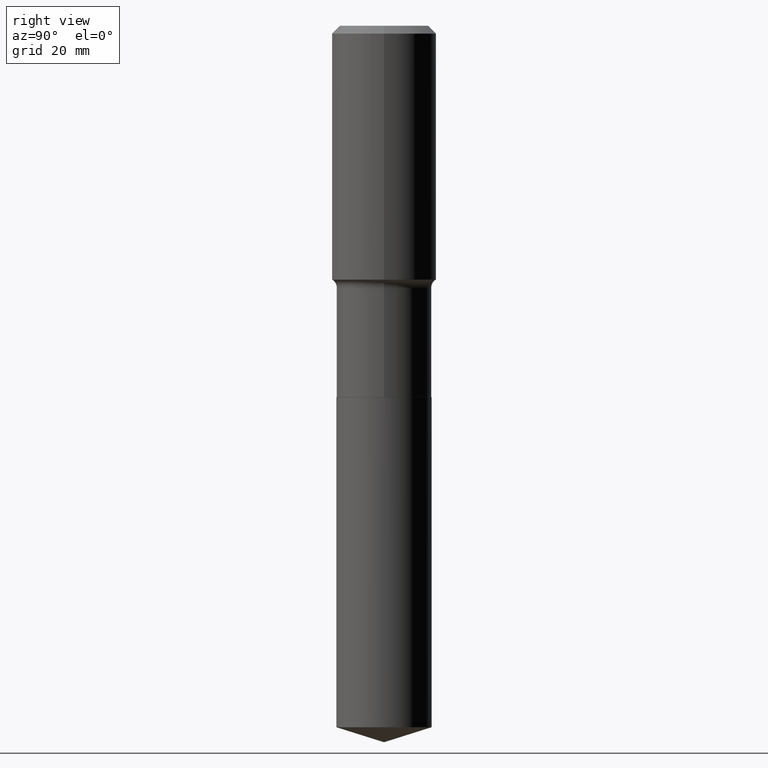
[diagram: clean part render]
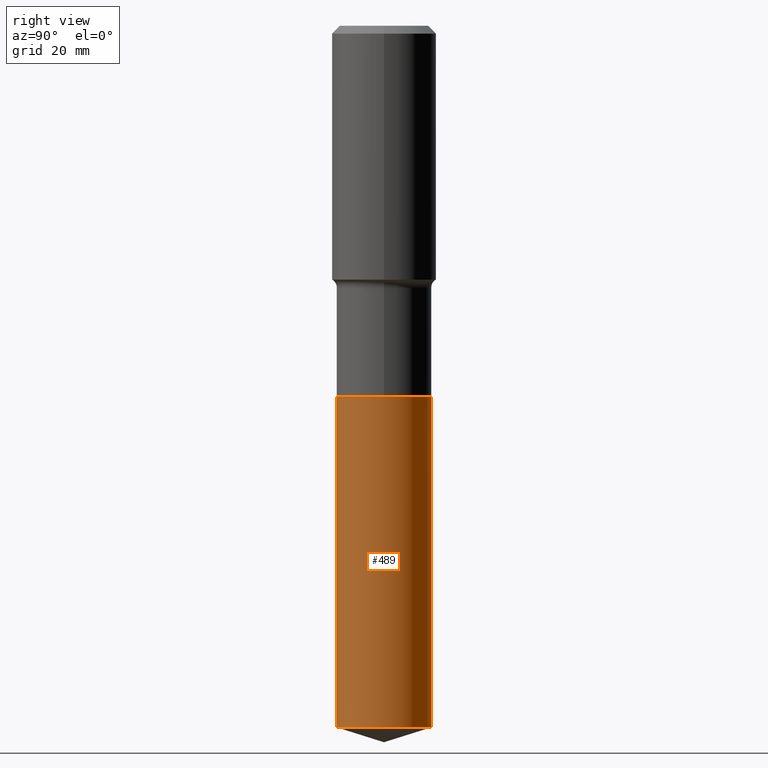
[diagram: same view with one face highlighted and labeled with its STEP entity id]
A machine part, right view. The second image highlights one B-rep face of the part: STEP entity #489.
In plain terms, the highlighted cylindrical surface (partial cylindrical patch) has radius 10.1206 mm, axis along (-0, 0, 1).
Its self-contained STEP definition (entity closure, byte-faithful):
#56 = ORIENTED_EDGE ( 'NONE', *, *, #328, .T. ) ;
#74 = EDGE_CURVE ( 'NONE', #129, #136, #346, .T. ) ;
#77 = CARTESIAN_POINT ( 'NONE',  ( -2.782361478924016448E-15, -0.3984500000000109066, -3.109399999999998609 ) ) ;
#87 = CARTESIAN_POINT ( 'NONE',  ( 7.603940705952065203E-29, -1.085641207499887869E-14, -3.109400000000000386 ) ) ;
#98 = FACE_OUTER_BOUND ( 'NONE', #288, .T. ) ;
#100 = CARTESIAN_POINT ( 'NONE',  ( 2.831157530636262556E-15, 0.3984499999999795428, -5.874369197571171597 ) ) ;
#111 = CARTESIAN_POINT ( 'NONE',  ( 2.831157530636262556E-15, 0.3984499999999891462, -3.109400000000002162 ) ) ;
#116 = LINE ( 'NONE', #77, #254 ) ;
#119 = VECTOR ( 'NONE', #266, 39.37007874015748143 ) ;
#124 = AXIS2_PLACEMENT_3D ( 'NONE', #170, #426, #250 ) ;
#129 = VERTEX_POINT ( 'NONE', #271 ) ;
#136 = VERTEX_POINT ( 'NONE', #111 ) ;
#145 = CARTESIAN_POINT ( 'NONE',  ( -2.782361478923949789E-15, -0.3984500000000205100, -5.874369197571169821 ) ) ;
#146 = ORIENTED_EDGE ( 'NONE', *, *, #74, .F. ) ;
#170 = CARTESIAN_POINT ( 'NONE',  ( 7.603940705952065203E-29, -1.085641207499887869E-14, -3.109400000000000386 ) ) ;
#175 = CIRCLE ( 'NONE', #239, 0.3984500000000000264 ) ;
#186 = DIRECTION ( 'NONE',  ( -6.982962677686265133E-15, -1.000000000000000000, 2.742475084617154406E-15 ) ) ;
#200 = ORIENTED_EDGE ( 'NONE', *, *, #389, .T. ) ;
#206 = CYLINDRICAL_SURFACE ( 'NONE', #124, 0.3984500000000000264 ) ;
#228 = DIRECTION ( 'NONE',  ( -6.982962677686265133E-15, -1.000000000000000000, 4.113712626925731609E-15 ) ) ;
#239 = AXIS2_PLACEMENT_3D ( 'NONE', #378, #374, #186 ) ;
#249 = VERTEX_POINT ( 'NONE', #100 ) ;
#250 = DIRECTION ( 'NONE',  ( -6.982962677686265133E-15, -1.000000000000000000, 4.113712626925731609E-15 ) ) ;
#254 = VECTOR ( 'NONE', #479, 39.37007874015748143 ) ;
#266 = DIRECTION ( 'NONE',  ( -2.445472137321116635E-29, 3.491476568466825474E-15, 1.000000000000000000 ) ) ;
#271 = CARTESIAN_POINT ( 'NONE',  ( -2.782361478924016448E-15, -0.3984500000000109066, -3.109399999999998609 ) ) ;
#284 = ORIENTED_EDGE ( 'NONE', *, *, #352, .F. ) ;
#286 = AXIS2_PLACEMENT_3D ( 'NONE', #87, #336, #228 ) ;
#288 = EDGE_LOOP ( 'NONE', ( #56, #200, #146, #284 ) ) ;
#328 = EDGE_CURVE ( 'NONE', #400, #249, #175, .T. ) ;
#336 = DIRECTION ( 'NONE',  ( -2.445472137321116635E-29, 3.491476568466825474E-15, 1.000000000000000000 ) ) ;
#344 = CARTESIAN_POINT ( 'NONE',  ( 2.831157530636195109E-15, 0.3984499999999891462, -3.109400000000002162 ) ) ;
#346 = CIRCLE ( 'NONE', #286, 0.3984500000000000264 ) ;
#352 = EDGE_CURVE ( 'NONE', #400, #129, #116, .T. ) ;
#374 = DIRECTION ( 'NONE',  ( -2.445472137321116635E-29, 3.491476568466825474E-15, 1.000000000000000000 ) ) ;
#378 = CARTESIAN_POINT ( 'NONE',  ( 1.436559583916348787E-28, -2.051023724085114055E-14, -5.874369197571170709 ) ) ;
#389 = EDGE_CURVE ( 'NONE', #249, #136, #416, .T. ) ;
#400 = VERTEX_POINT ( 'NONE', #145 ) ;
#416 = LINE ( 'NONE', #344, #119 ) ;
#426 = DIRECTION ( 'NONE',  ( -2.445472137321116635E-29, 3.491476568466825474E-15, 1.000000000000000000 ) ) ;
#479 = DIRECTION ( 'NONE',  ( -2.445472137321116635E-29, 3.491476568466825474E-15, 1.000000000000000000 ) ) ;
#489 = ADVANCED_FACE ( 'NONE', ( #98 ), #206, .T. ) ;